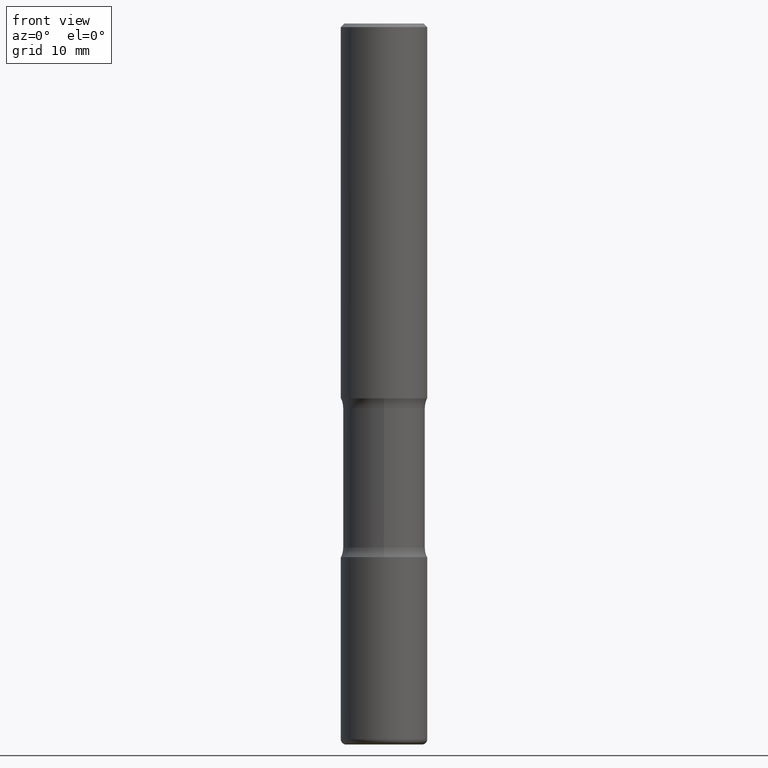
[diagram: clean part render]
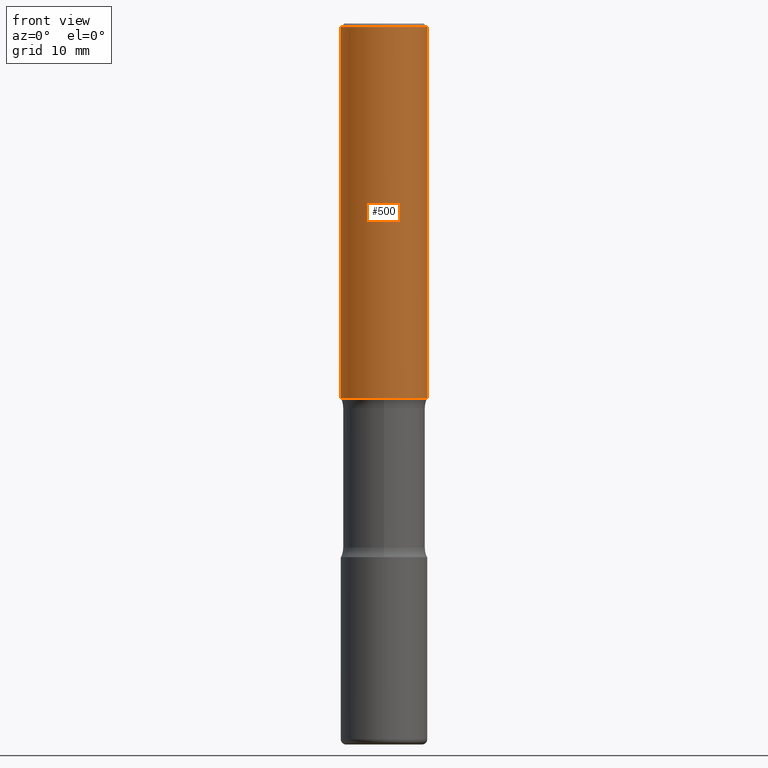
[diagram: same view with one face highlighted and labeled with its STEP entity id]
A machine part, front view. The second image highlights one B-rep face of the part: STEP entity #500.
In plain terms, the highlighted cylindrical surface (partial cylindrical patch) has radius 5.9995 mm, axis along (-0, 0, 1).
Its self-contained STEP definition (entity closure, byte-faithful):
#4 = CIRCLE ( 'NONE', #382, 0.2361999999999998823 ) ;
#17 = CARTESIAN_POINT ( 'NONE',  ( 0.000000000000000000, 0.000000000000000000, 0.000000000000000000 ) ) ;
#25 = CYLINDRICAL_SURFACE ( 'NONE', #320, 0.2361999999999999933 ) ;
#45 = CARTESIAN_POINT ( 'NONE',  ( -0.2361999999999999933, 1.678301941865356591E-15, -1.161852468318208757E-29 ) ) ;
#67 = DIRECTION ( 'NONE',  ( 1.000000000000000000, -6.982962677686267499E-15, 0.000000000000000000 ) ) ;
#99 = VERTEX_POINT ( 'NONE', #364 ) ;
#106 = EDGE_CURVE ( 'NONE', #122, #99, #4, .T. ) ;
#120 = VECTOR ( 'NONE', #261, 39.37007874015748143 ) ;
#122 = VERTEX_POINT ( 'NONE', #498 ) ;
#130 = VERTEX_POINT ( 'NONE', #411 ) ;
#139 = ORIENTED_EDGE ( 'NONE', *, *, #432, .T. ) ;
#183 = EDGE_LOOP ( 'NONE', ( #531, #271, #139, #395 ) ) ;
#186 = EDGE_CURVE ( 'NONE', #130, #122, #516, .T. ) ;
#217 = CARTESIAN_POINT ( 'NONE',  ( 0.2362000000000001321, -8.797136381349186305E-15, -2.047200000000000131 ) ) ;
#242 = CARTESIAN_POINT ( 'NONE',  ( 4.890937612370289799E-31, -6.982962677686315028E-17, -0.02000000000000006981 ) ) ;
#261 = DIRECTION ( 'NONE',  ( -2.445468806185136877E-29, 3.491481338843145188E-15, 1.000000000000000000 ) ) ;
#271 = ORIENTED_EDGE ( 'NONE', *, *, #365, .T. ) ;
#304 = DIRECTION ( 'NONE',  ( -2.445468806185136597E-29, 3.491481338843145583E-15, 1.000000000000000000 ) ) ;
#320 = AXIS2_PLACEMENT_3D ( 'NONE', #17, #304, #479 ) ;
#362 = CARTESIAN_POINT ( 'NONE',  ( 5.006363740022212241E-29, -7.147760596879688202E-15, -2.047200000000000131 ) ) ;
#364 = CARTESIAN_POINT ( 'NONE',  ( 0.2361999999999998823, -1.690279253850498179E-15, -0.02000000000000006981 ) ) ;
#365 = EDGE_CURVE ( 'NONE', #130, #477, #525, .T. ) ;
#378 = DIRECTION ( 'NONE',  ( -2.445468806185136877E-29, 3.491481338843145188E-15, 1.000000000000000000 ) ) ;
#382 = AXIS2_PLACEMENT_3D ( 'NONE', #242, #416, #67 ) ;
#395 = ORIENTED_EDGE ( 'NONE', *, *, #106, .F. ) ;
#400 = AXIS2_PLACEMENT_3D ( 'NONE', #362, #534, #541 ) ;
#408 = FACE_OUTER_BOUND ( 'NONE', #183, .T. ) ;
#411 = CARTESIAN_POINT ( 'NONE',  ( -0.2362000000000001598, -1.930493169962915017E-15, -2.047200000000000131 ) ) ;
#416 = DIRECTION ( 'NONE',  ( -2.445468806185136597E-29, 3.491481338843145583E-15, 1.000000000000000000 ) ) ;
#432 = EDGE_CURVE ( 'NONE', #477, #99, #490, .T. ) ;
#452 = CARTESIAN_POINT ( 'NONE',  ( 0.2361999999999999933, -1.649375784469496131E-15, 1.151752954443000088E-29 ) ) ;
#477 = VERTEX_POINT ( 'NONE', #217 ) ;
#479 = DIRECTION ( 'NONE',  ( 1.000000000000000000, -6.982962677686266711E-15, 4.876176775795936353E-29 ) ) ;
#490 = LINE ( 'NONE', #452, #120 ) ;
#498 = CARTESIAN_POINT ( 'NONE',  ( -0.2361999999999998823, 1.579546157692632438E-15, -0.02000000000000006981 ) ) ;
#500 = ADVANCED_FACE ( 'NONE', ( #408 ), #25, .T. ) ;
#512 = VECTOR ( 'NONE', #378, 39.37007874015748143 ) ;
#516 = LINE ( 'NONE', #45, #512 ) ;
#525 = CIRCLE ( 'NONE', #400, 0.2362000000000001321 ) ;
#531 = ORIENTED_EDGE ( 'NONE', *, *, #186, .F. ) ;
#534 = DIRECTION ( 'NONE',  ( -2.445468806185136597E-29, 3.491481338843145583E-15, 1.000000000000000000 ) ) ;
#541 = DIRECTION ( 'NONE',  ( 1.000000000000000000, -6.982962677686269077E-15, 0.000000000000000000 ) ) ;